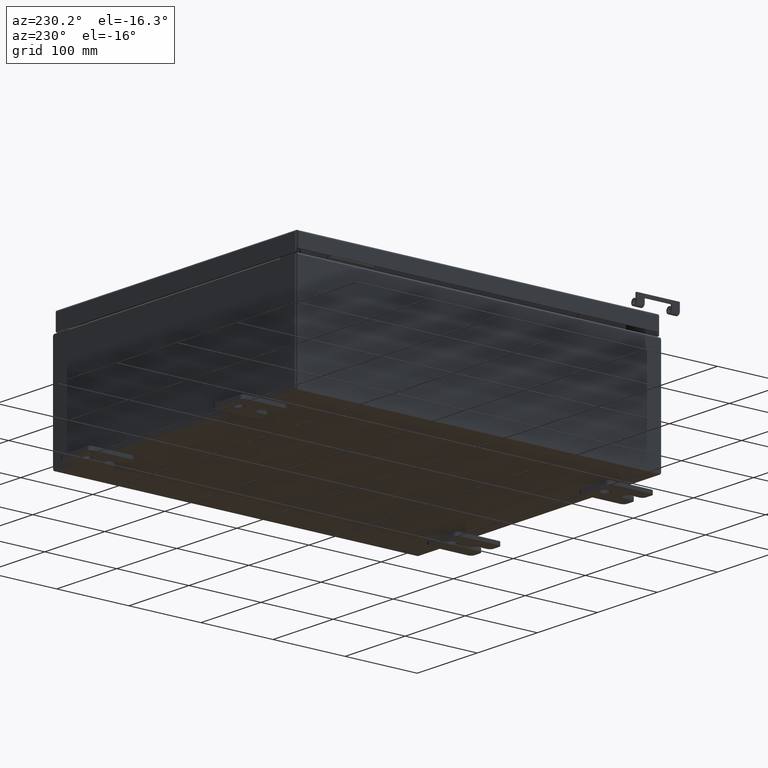
[diagram: clean part render]
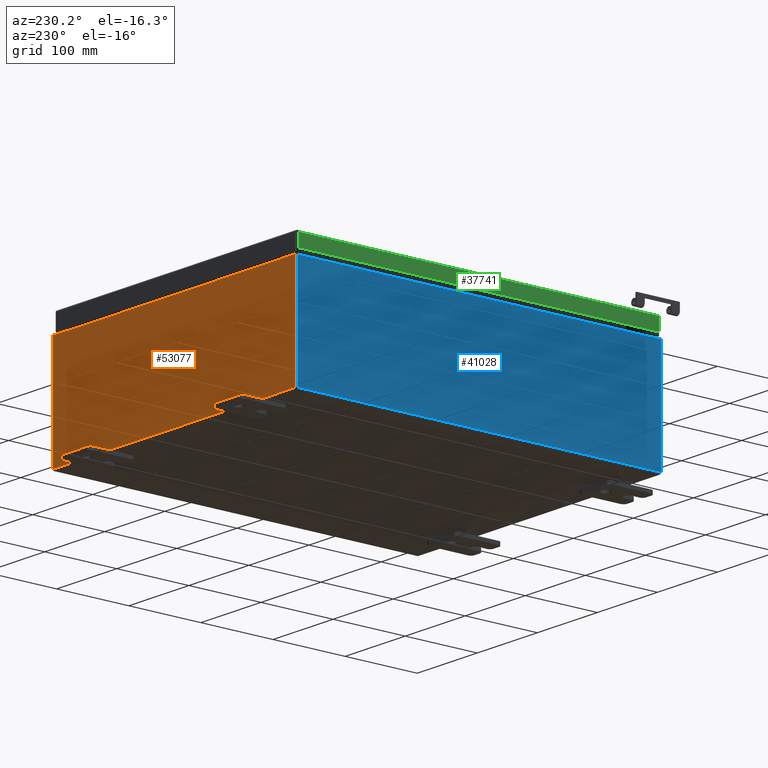
[diagram: same view with three faces highlighted in distinct colors, each labeled with its STEP entity id]
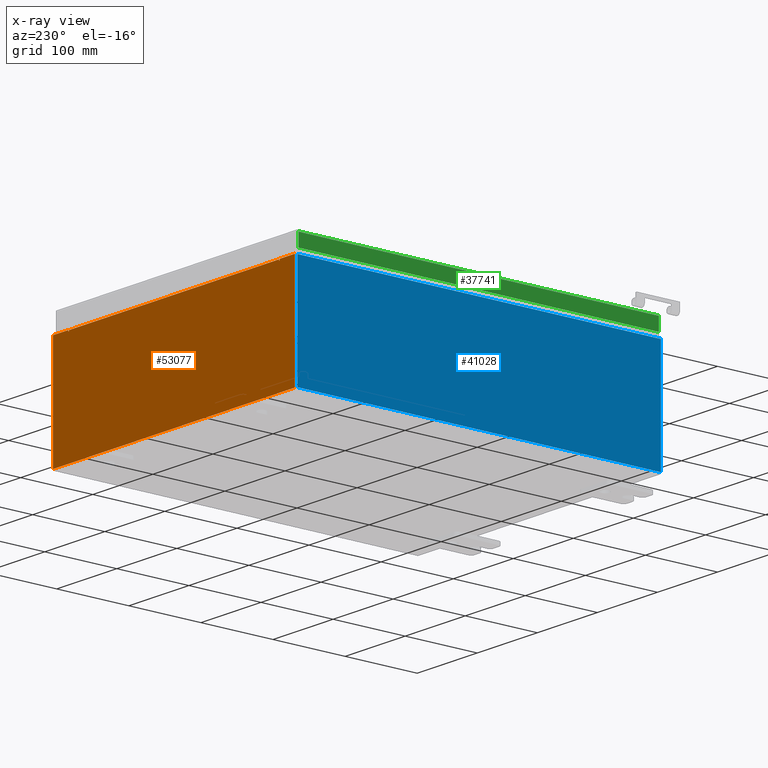
[diagram: x-ray of the same camera — body ghosted, the three highlighted faces saturated]
A machine part, auxiliary view with three faces highlighted in distinct colors.
The next image is the same camera in x-ray (body ghosted, the three faces saturated) — at least one of them is partly hidden behind the body in this view.
Their STEP definitions:

[orange] entity #53077 — the highlighted planar face has unit normal (0, -1, 0).
#722 = VECTOR ( 'NONE', #36491, 39.37007874015748100 ) ;
#1074 = LINE ( 'NONE', #18255, #14027 ) ;
#1457 = CARTESIAN_POINT ( 'NONE',  ( 6.887200000000000000, 0.0000000000000000000, 2.912300000000000600 ) ) ;
#3086 = DIRECTION ( 'NONE',  ( -0.0000000000000000000, 1.000000000000000000, -0.0000000000000000000 ) ) ;
#3362 = CARTESIAN_POINT ( 'NONE',  ( 6.924550000000000000, 0.0000000000000000000, 2.874950000000000600 ) ) ;
#4622 = EDGE_CURVE ( 'NONE', #35187, #53379, #58990, .T. ) ;
#5225 = ORIENTED_EDGE ( 'NONE', *, *, #4622, .F. ) ;
#5361 = ORIENTED_EDGE ( 'NONE', *, *, #60604, .F. ) ;
#5843 = LINE ( 'NONE', #61606, #31742 ) ;
#6404 = ORIENTED_EDGE ( 'NONE', *, *, #41844, .F. ) ;
#7435 = EDGE_CURVE ( 'NONE', #36529, #27334, #50221, .T. ) ;
#9179 = DIRECTION ( 'NONE',  ( 0.0000000000000000000, -1.000000000000000000, 0.0000000000000000000 ) ) ;
#9840 = CARTESIAN_POINT ( 'NONE',  ( -6.887199999999998200, -0.0000000000000000000, 0.0000000000000000000 ) ) ;
#10874 = ORIENTED_EDGE ( 'NONE', *, *, #29739, .F. ) ;
#11329 = VECTOR ( 'NONE', #38573, 39.37007874015748100 ) ;
#11948 = ORIENTED_EDGE ( 'NONE', *, *, #33102, .T. ) ;
#12355 = CARTESIAN_POINT ( 'NONE',  ( -6.924549999999999100, -0.0000000000000000000, 0.0000000000000000000 ) ) ;
#12951 = CARTESIAN_POINT ( 'NONE',  ( 6.924550000000000000, 0.0000000000000000000, 2.925300000000000500 ) ) ;
#13116 = EDGE_CURVE ( 'NONE', #43113, #53379, #1074, .T. ) ;
#13497 = VERTEX_POINT ( 'NONE', #20142 ) ;
#14027 = VECTOR ( 'NONE', #27611, 39.37007874015748100 ) ;
#14491 = AXIS2_PLACEMENT_3D ( 'NONE', #32273, #3086, #37179 ) ;
#14595 = DIRECTION ( 'NONE',  ( -0.0000000000000000000, 1.000000000000000000, -0.0000000000000000000 ) ) ;
#15358 = LINE ( 'NONE', #44607, #26757 ) ;
#15814 = DIRECTION ( 'NONE',  ( 0.0000000000000000000, 0.0000000000000000000, -1.000000000000000000 ) ) ;
#16117 = LINE ( 'NONE', #55260, #51939 ) ;
#16457 = VECTOR ( 'NONE', #15814, 39.37007874015748100 ) ;
#18239 = EDGE_CURVE ( 'NONE', #24995, #43479, #16117, .T. ) ;
#18255 = CARTESIAN_POINT ( 'NONE',  ( -7.925300000000000000, 0.0000000000000000000, 2.925300000000000500 ) ) ;
#18925 = CARTESIAN_POINT ( 'NONE',  ( -7.925300000000000000, 0.0000000000000000000, -2.925299999999999600 ) ) ;
#19030 = VECTOR ( 'NONE', #59381, 39.37007874015748100 ) ;
#19602 = DIRECTION ( 'NONE',  ( 0.0000000000000000000, 0.0000000000000000000, -1.000000000000000000 ) ) ;
#20041 = CARTESIAN_POINT ( 'NONE',  ( 7.925300000000000000, 0.0000000000000000000, 2.925300000000000500 ) ) ;
#20142 = CARTESIAN_POINT ( 'NONE',  ( 6.887199999999998200, 0.0000000000000000000, 2.874950000000000600 ) ) ;
#21659 = EDGE_LOOP ( 'NONE', ( #5225, #6404, #10874, #11948, #5361, #25505, #22836, #44286, #51910, #36316, #32478, #25179 ) ) ;
#22836 = ORIENTED_EDGE ( 'NONE', *, *, #18239, .F. ) ;
#23374 = CARTESIAN_POINT ( 'NONE',  ( 7.925300000000000000, 0.0000000000000000000, -2.925299999999999600 ) ) ;
#24995 = VERTEX_POINT ( 'NONE', #12951 ) ;
#25179 = ORIENTED_EDGE ( 'NONE', *, *, #13116, .T. ) ;
#25505 = ORIENTED_EDGE ( 'NONE', *, *, #44296, .F. ) ;
#26757 = VECTOR ( 'NONE', #54429, 39.37007874015748100 ) ;
#27334 = VERTEX_POINT ( 'NONE', #57694 ) ;
#27422 = DIRECTION ( 'NONE',  ( 1.000000000000000000, 0.0000000000000000000, 0.0000000000000000000 ) ) ;
#27611 = DIRECTION ( 'NONE',  ( 1.000000000000000000, 0.0000000000000000000, 0.0000000000000000000 ) ) ;
#29739 = EDGE_CURVE ( 'NONE', #62567, #49147, #37940, .T. ) ;
#30461 = VERTEX_POINT ( 'NONE', #20041 ) ;
#30856 = EDGE_CURVE ( 'NONE', #24995, #30461, #5843, .T. ) ;
#31283 = CARTESIAN_POINT ( 'NONE',  ( -6.924549999999999100, 0.0000000000000000000, 2.925300000000000500 ) ) ;
#31742 = VECTOR ( 'NONE', #27422, 39.37007874015748100 ) ;
#31977 = CARTESIAN_POINT ( 'NONE',  ( -6.887199999999998200, -0.0000000000000000000, 2.874950000000000600 ) ) ;
#32273 = CARTESIAN_POINT ( 'NONE',  ( 6.905874999999999100, 0.0000000000000000000, 2.874950000000000600 ) ) ;
#32478 = ORIENTED_EDGE ( 'NONE', *, *, #44683, .T. ) ;
#33102 = EDGE_CURVE ( 'NONE', #62567, #36278, #38088, .T. ) ;
#35047 = CARTESIAN_POINT ( 'NONE',  ( 6.887200000000000000, 0.0000000000000000000, 0.0000000000000000000 ) ) ;
#35187 = VERTEX_POINT ( 'NONE', #37594 ) ;
#35968 = CIRCLE ( 'NONE', #14491, 0.01867500000000003900 ) ;
#36063 = VECTOR ( 'NONE', #51356, 39.37007874015748100 ) ;
#36278 = VERTEX_POINT ( 'NONE', #1457 ) ;
#36316 = ORIENTED_EDGE ( 'NONE', *, *, #7435, .T. ) ;
#36491 = DIRECTION ( 'NONE',  ( 1.000000000000000000, 0.0000000000000000000, 0.0000000000000000000 ) ) ;
#36529 = VERTEX_POINT ( 'NONE', #23374 ) ;
#37179 = DIRECTION ( 'NONE',  ( 0.0000000000000000000, 0.0000000000000000000, -1.000000000000000000 ) ) ;
#37594 = CARTESIAN_POINT ( 'NONE',  ( -6.924549999999997300, 0.0000000000000000000, 2.874950000000000600 ) ) ;
#37940 = LINE ( 'NONE', #9840, #62393 ) ;
#38088 = LINE ( 'NONE', #46291, #722 ) ;
#38573 = DIRECTION ( 'NONE',  ( -1.000000000000000000, -0.0000000000000000000, -0.0000000000000000000 ) ) ;
#41844 = EDGE_CURVE ( 'NONE', #49147, #35187, #52903, .T. ) ;
#42361 = LINE ( 'NONE', #49925, #16457 ) ;
#43113 = VERTEX_POINT ( 'NONE', #43810 ) ;
#43263 = DIRECTION ( 'NONE',  ( 0.0000000000000000000, -0.0000000000000000000, -1.000000000000000000 ) ) ;
#43479 = VERTEX_POINT ( 'NONE', #3362 ) ;
#43797 = CARTESIAN_POINT ( 'NONE',  ( -6.905874999999998200, 0.0000000000000000000, 2.874950000000000600 ) ) ;
#43810 = CARTESIAN_POINT ( 'NONE',  ( -7.925300000000000000, 0.0000000000000000000, 2.925300000000000500 ) ) ;
#44286 = ORIENTED_EDGE ( 'NONE', *, *, #30856, .T. ) ;
#44296 = EDGE_CURVE ( 'NONE', #43479, #13497, #35968, .T. ) ;
#44607 = CARTESIAN_POINT ( 'NONE',  ( -7.925300000000000000, 0.0000000000000000000, 2.925300000000000500 ) ) ;
#44683 = EDGE_CURVE ( 'NONE', #27334, #43113, #15358, .T. ) ;
#45396 = AXIS2_PLACEMENT_3D ( 'NONE', #62730, #9179, #43263 ) ;
#46291 = CARTESIAN_POINT ( 'NONE',  ( -6.887200000000000000, -1.707404996040164500E-016, 2.912300000000000600 ) ) ;
#48709 = DIRECTION ( 'NONE',  ( 0.0000000000000000000, 0.0000000000000000000, -1.000000000000000000 ) ) ;
#48981 = EDGE_CURVE ( 'NONE', #30461, #36529, #42361, .T. ) ;
#49147 = VERTEX_POINT ( 'NONE', #31977 ) ;
#49925 = CARTESIAN_POINT ( 'NONE',  ( 7.925300000000000000, 0.0000000000000000000, 2.925300000000000500 ) ) ;
#50221 = LINE ( 'NONE', #18925, #11329 ) ;
#50611 = CARTESIAN_POINT ( 'NONE',  ( -6.887199999999998200, -1.707404996040164500E-016, 2.912300000000000600 ) ) ;
#51356 = DIRECTION ( 'NONE',  ( 0.0000000000000000000, 0.0000000000000000000, 1.000000000000000000 ) ) ;
#51910 = ORIENTED_EDGE ( 'NONE', *, *, #48981, .T. ) ;
#51939 = VECTOR ( 'NONE', #60403, 39.37007874015748100 ) ;
#52903 = CIRCLE ( 'NONE', #62284, 0.01867500000000003900 ) ;
#53077 = ADVANCED_FACE ( 'NONE', ( #57555 ), #57803, .F. ) ;
#53379 = VERTEX_POINT ( 'NONE', #31283 ) ;
#54429 = DIRECTION ( 'NONE',  ( -0.0000000000000000000, -0.0000000000000000000, 1.000000000000000000 ) ) ;
#55260 = CARTESIAN_POINT ( 'NONE',  ( 6.924549999999875600, -0.0000000000000000000, -3.005651324651831700E-013 ) ) ;
#56423 = LINE ( 'NONE', #35047, #19030 ) ;
#57555 = FACE_OUTER_BOUND ( 'NONE', #21659, .T. ) ;
#57694 = CARTESIAN_POINT ( 'NONE',  ( -7.925300000000000000, 0.0000000000000000000, -2.925299999999999600 ) ) ;
#57803 = PLANE ( 'NONE',  #45396 ) ;
#58990 = LINE ( 'NONE', #12355, #36063 ) ;
#59381 = DIRECTION ( 'NONE',  ( 0.0000000000000000000, 0.0000000000000000000, 1.000000000000000000 ) ) ;
#60403 = DIRECTION ( 'NONE',  ( -4.340572780400004900E-014, 0.0000000000000000000, -1.000000000000000000 ) ) ;
#60604 = EDGE_CURVE ( 'NONE', #13497, #36278, #56423, .T. ) ;
#61606 = CARTESIAN_POINT ( 'NONE',  ( -7.925300000000000000, 0.0000000000000000000, 2.925300000000000500 ) ) ;
#62284 = AXIS2_PLACEMENT_3D ( 'NONE', #43797, #14595, #48709 ) ;
#62393 = VECTOR ( 'NONE', #19602, 39.37007874015748100 ) ;
#62567 = VERTEX_POINT ( 'NONE', #50611 ) ;
#62730 = CARTESIAN_POINT ( 'NONE',  ( 0.0000000000000000000, 0.0000000000000000000, 0.0000000000000000000 ) ) ;

[blue] entity #41028 — the highlighted planar face has unit normal (1, 0, 0).
#607 = VECTOR ( 'NONE', #3989, 39.37007874015748100 ) ;
#1345 = AXIS2_PLACEMENT_3D ( 'NONE', #42438, #37781, #8583 ) ;
#2286 = ORIENTED_EDGE ( 'NONE', *, *, #46266, .T. ) ;
#3673 = PLANE ( 'NONE',  #1345 ) ;
#3989 = DIRECTION ( 'NONE',  ( 3.503965158194252100E-015, 0.0000000000000000000, -1.000000000000000000 ) ) ;
#8583 = DIRECTION ( 'NONE',  ( 3.503965158194251300E-015, 0.0000000000000000000, -1.000000000000000000 ) ) ;
#11109 = CARTESIAN_POINT ( 'NONE',  ( -7.999999999999997300, -9.925300000000000000, 0.01299999999999984700 ) ) ;
#14241 = CARTESIAN_POINT ( 'NONE',  ( -7.999999999999997300, 9.925299999999998200, 0.01299999999999984700 ) ) ;
#15567 = EDGE_CURVE ( 'NONE', #26870, #36705, #39059, .T. ) ;
#17352 = VECTOR ( 'NONE', #32650, 39.37007874015748100 ) ;
#18892 = LINE ( 'NONE', #42215, #17352 ) ;
#19801 = ORIENTED_EDGE ( 'NONE', *, *, #15567, .F. ) ;
#26051 = VECTOR ( 'NONE', #28951, 39.37007874015748100 ) ;
#26870 = VERTEX_POINT ( 'NONE', #11109 ) ;
#27174 = CARTESIAN_POINT ( 'NONE',  ( -8.000000000000017800, -9.925299999999996500, 5.837599999999999200 ) ) ;
#28951 = DIRECTION ( 'NONE',  ( -0.0000000000000000000, 1.000000000000000000, -0.0000000000000000000 ) ) ;
#29831 = EDGE_CURVE ( 'NONE', #26870, #51592, #60844, .T. ) ;
#30168 = EDGE_LOOP ( 'NONE', ( #2286, #46845, #19801, #54215 ) ) ;
#32650 = DIRECTION ( 'NONE',  ( 0.0000000000000000000, 1.000000000000000000, 0.0000000000000000000 ) ) ;
#34971 = DIRECTION ( 'NONE',  ( -3.503965158194252100E-015, 0.0000000000000000000, 1.000000000000000000 ) ) ;
#36548 = EDGE_CURVE ( 'NONE', #41170, #36705, #49432, .T. ) ;
#36705 = VERTEX_POINT ( 'NONE', #48739 ) ;
#37781 = DIRECTION ( 'NONE',  ( 1.000000000000000000, 0.0000000000000000000, 3.503965158194251300E-015 ) ) ;
#38092 = CARTESIAN_POINT ( 'NONE',  ( -7.999999999999997300, 9.925299999999998200, -2.829253492156558900E-014 ) ) ;
#39059 = LINE ( 'NONE', #14241, #26051 ) ;
#41028 = ADVANCED_FACE ( 'NONE', ( #48386 ), #3673, .F. ) ;
#41170 = VERTEX_POINT ( 'NONE', #53951 ) ;
#42215 = CARTESIAN_POINT ( 'NONE',  ( -8.000000000000017800, -9.925299999999998200, 5.837599999999999200 ) ) ;
#42438 = CARTESIAN_POINT ( 'NONE',  ( -7.999999999999997300, 0.0000000000000000000, -2.829253492156558900E-014 ) ) ;
#46266 = EDGE_CURVE ( 'NONE', #51592, #41170, #18892, .T. ) ;
#46845 = ORIENTED_EDGE ( 'NONE', *, *, #36548, .T. ) ;
#48386 = FACE_OUTER_BOUND ( 'NONE', #30168, .T. ) ;
#48739 = CARTESIAN_POINT ( 'NONE',  ( -7.999999999999997300, 9.925299999999998200, 0.01299999999999984500 ) ) ;
#49432 = LINE ( 'NONE', #38092, #607 ) ;
#51592 = VERTEX_POINT ( 'NONE', #27174 ) ;
#53951 = CARTESIAN_POINT ( 'NONE',  ( -8.000000000000017800, 9.925299999999998200, 5.837599999999999200 ) ) ;
#54215 = ORIENTED_EDGE ( 'NONE', *, *, #29831, .T. ) ;
#59311 = CARTESIAN_POINT ( 'NONE',  ( -7.999999999999997300, -9.925300000000001800, -2.829253492156558900E-014 ) ) ;
#59325 = VECTOR ( 'NONE', #34971, 39.37007874015748100 ) ;
#60844 = LINE ( 'NONE', #59311, #59325 ) ;

[green] entity #37741 — the highlighted planar face has unit normal (1, 0, -0).
#312 = LINE ( 'NONE', #31102, #50636 ) ;
#4085 = EDGE_CURVE ( 'NONE', #4587, #31301, #48977, .T. ) ;
#4587 = VERTEX_POINT ( 'NONE', #46453 ) ;
#7117 = VECTOR ( 'NONE', #22228, 39.37007874015748100 ) ;
#10196 = DIRECTION ( 'NONE',  ( -3.034122441942816500E-015, 6.982962677686267500E-015, -1.000000000000000000 ) ) ;
#12397 = DIRECTION ( 'NONE',  ( 1.000000000000000000, 3.753401345910882400E-031, -3.034122441942816500E-015 ) ) ;
#12585 = EDGE_CURVE ( 'NONE', #4587, #25673, #55258, .T. ) ;
#13784 = EDGE_CURVE ( 'NONE', #25673, #54659, #33042, .T. ) ;
#15228 = CARTESIAN_POINT ( 'NONE',  ( -7.937500000000002700, 9.848657864376271200, -0.7949999999999972600 ) ) ;
#17004 = ORIENTED_EDGE ( 'NONE', *, *, #4085, .T. ) ;
#17084 = CARTESIAN_POINT ( 'NONE',  ( -7.937500000000000000, -2.979262318316762700E-030, 2.434416053893268900E-014 ) ) ;
#19540 = CARTESIAN_POINT ( 'NONE',  ( -7.937500000000000000, 9.848657864376265900, 9.311697083117350000E-014 ) ) ;
#21339 = CARTESIAN_POINT ( 'NONE',  ( -7.937500000000002700, -9.848657864376265900, -0.7949999999999996000 ) ) ;
#22228 = DIRECTION ( 'NONE',  ( -3.034122441942816500E-015, 6.982962677686267500E-015, -1.000000000000000000 ) ) ;
#25673 = VERTEX_POINT ( 'NONE', #55894 ) ;
#27263 = DIRECTION ( 'NONE',  ( 3.753401345910882400E-031, -1.000000000000000000, -1.106432229392147200E-045 ) ) ;
#27892 = ORIENTED_EDGE ( 'NONE', *, *, #12585, .F. ) ;
#28589 = AXIS2_PLACEMENT_3D ( 'NONE', #17084, #12397, #46494 ) ;
#31102 = CARTESIAN_POINT ( 'NONE',  ( -7.937500000000002700, -9.937500000000001800, -0.7949999999999997100 ) ) ;
#31301 = VERTEX_POINT ( 'NONE', #15228 ) ;
#32927 = VECTOR ( 'NONE', #10196, 39.37007874015748100 ) ;
#33042 = LINE ( 'NONE', #36538, #7117 ) ;
#36538 = CARTESIAN_POINT ( 'NONE',  ( -7.937500000000000000, -9.848657864376271200, -0.07469999999999976700 ) ) ;
#36780 = ORIENTED_EDGE ( 'NONE', *, *, #13784, .F. ) ;
#37741 = ADVANCED_FACE ( 'NONE', ( #56207 ), #41594, .F. ) ;
#41314 = EDGE_CURVE ( 'NONE', #54659, #31301, #312, .T. ) ;
#41569 = CARTESIAN_POINT ( 'NONE',  ( -7.937500000000000000, -9.937500000000001800, -0.08770000000000004200 ) ) ;
#41594 = PLANE ( 'NONE',  #28589 ) ;
#41832 = ORIENTED_EDGE ( 'NONE', *, *, #41314, .F. ) ;
#42242 = VECTOR ( 'NONE', #27263, 39.37007874015748100 ) ;
#46453 = CARTESIAN_POINT ( 'NONE',  ( -7.937500000000000000, 9.848657864376269400, -0.08770000000000004200 ) ) ;
#46494 = DIRECTION ( 'NONE',  ( -3.034122441942816500E-015, 0.0000000000000000000, -1.000000000000000000 ) ) ;
#48977 = LINE ( 'NONE', #19540, #32927 ) ;
#50636 = VECTOR ( 'NONE', #60568, 39.37007874015748100 ) ;
#54659 = VERTEX_POINT ( 'NONE', #21339 ) ;
#55258 = LINE ( 'NONE', #41569, #42242 ) ;
#55894 = CARTESIAN_POINT ( 'NONE',  ( -7.937500000000000000, -9.848657864376273000, -0.08770000000000007000 ) ) ;
#56207 = FACE_OUTER_BOUND ( 'NONE', #58602, .T. ) ;
#58602 = EDGE_LOOP ( 'NONE', ( #27892, #17004, #41832, #36780 ) ) ;
#60568 = DIRECTION ( 'NONE',  ( 4.379057701015054300E-047, 1.000000000000000000, 1.237063242414006300E-016 ) ) ;